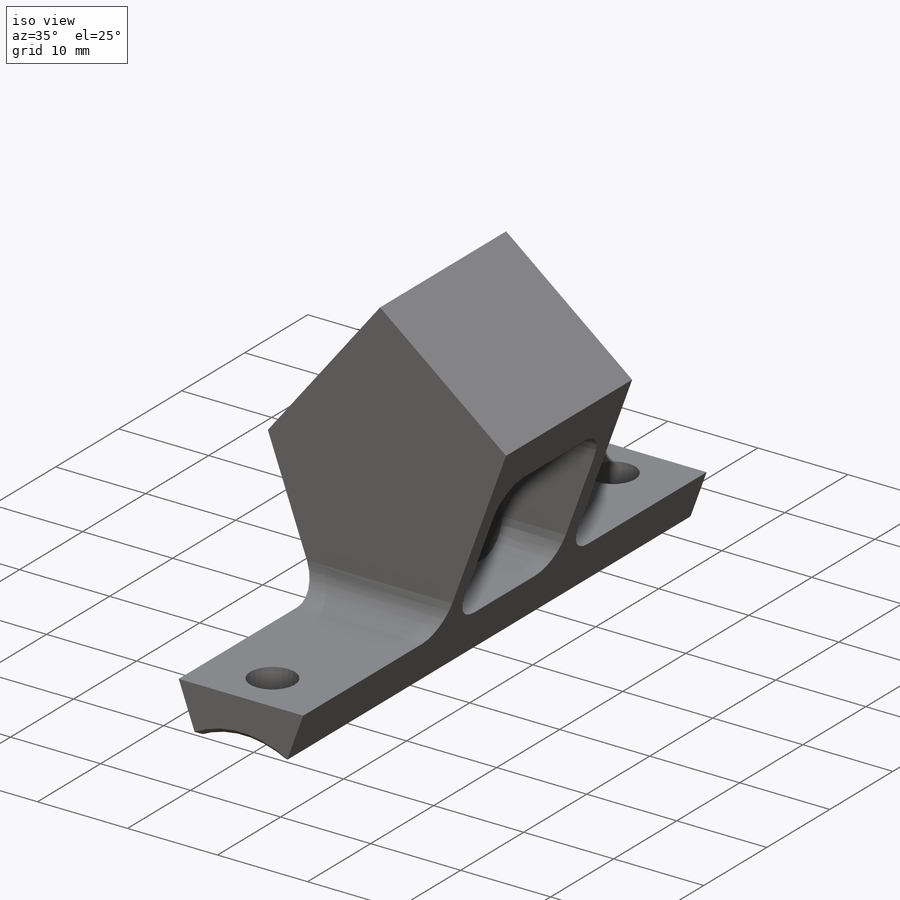
[diagram: iso view]
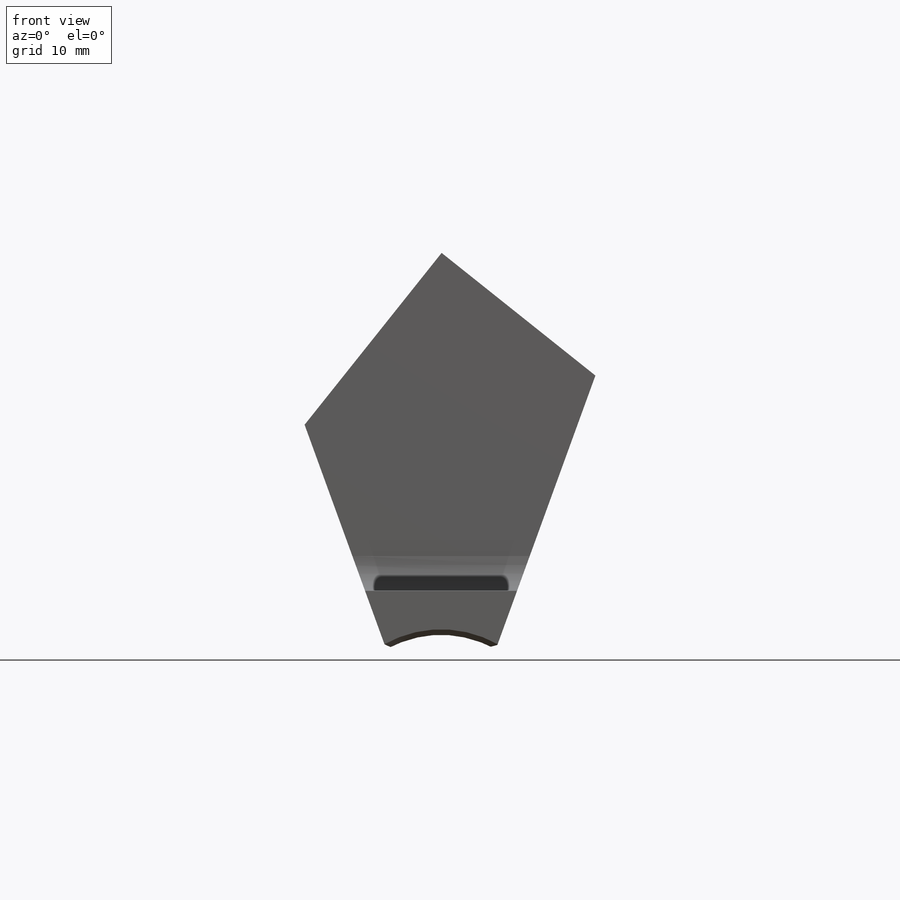
[diagram: front view]
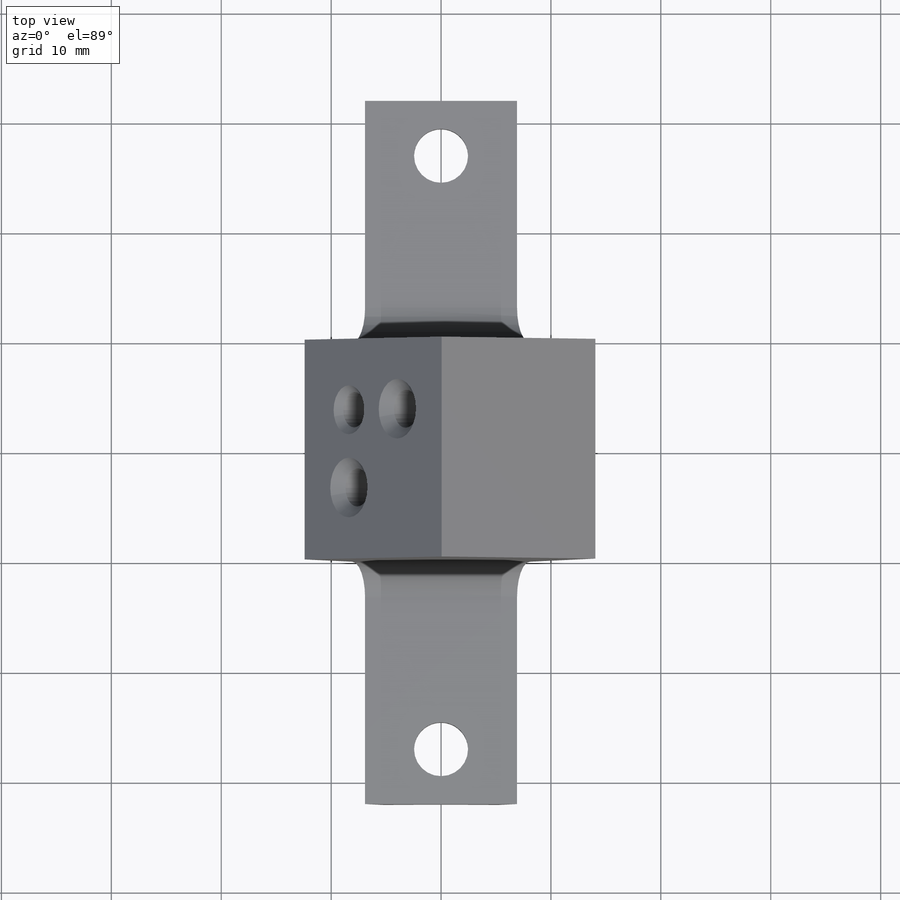
[diagram: top view]
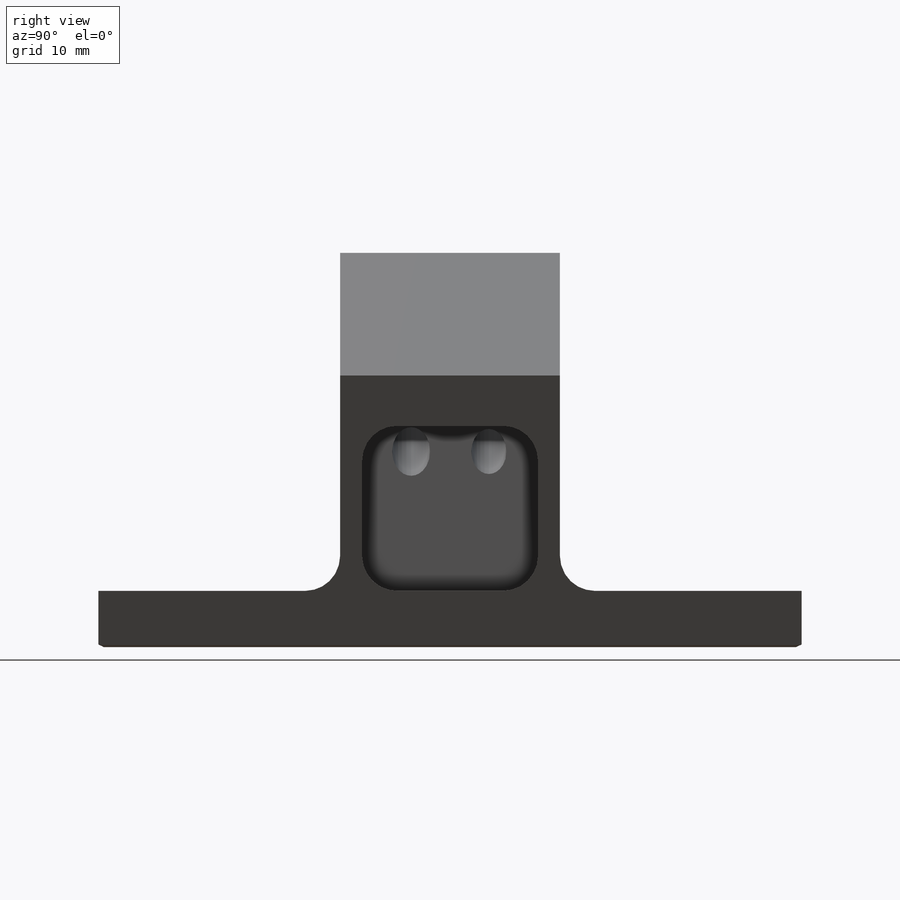
[diagram: right view]
SOLIDWORKS PART (.sldprt)
format: sldprt  version: not decoded by parser v0  size: 1,201,664 bytes
history: native  units: mm
features: sketch x21, hole x5, extrude x4, fillet x4, thread x4, cut_extrude x4, mirror x3, material x1, plane x1, chamfer x1 (+11 scaffold rows collapsed)
feature tree (59):
  scaffold x11  (default folders/planes/origin — collapsed)
  material  "6061 Alloy"
  sketch  "Sketch1"  dims[c1.D1=20.0mm c1.D2=~26.957236mm c2.D2=20.0deg c2.D3=~28.242621mm c3.D2=5.0mm c3.D3=~33.007526mm c4.D3=20.0deg c4.D4=~19.467788mm c5.D4=20.0deg c6.D4=158.0mm c6.D5=94.0mm c6.D6=20.0mm c6.D7=20.0mm c6.D8=18.0mm c6.D9=30.0mm c6.D10=210.0mm c7.D6=20.0mm c7.D8=18.0mm c7.D9=29.0mm c7.D11=7.0mm]
  extrude  "Extrude1"  Depth=20mm
  sketch  "Sketch2"  dims[D1=7.0mm]
  extrude  "Extrude2"  Depth=14mm
  sketch  "Sketch16"  dims[D1=4.0mm D2=2.0mm]
  extrude  "Extrude8"  Depth=22mm
  fillet  "Fillet2"  Radius=3.175mm
  mirror  "Mirror1"
  fillet  "Fillet3"  Radius=3.175mm
  sketch  "Sketch3"  dims[c1.D3=20.0mm c1.D1=~28.284271mm c2.D1=45.0deg c2.D2=10.0mm]
  hole  "#8-32 Tapped Hole2"  [1 undecoded]
  sketch  "3DSketch1"
  thread  "Hole Thread5"  Diameter=4.1656mm  [1 undecoded]
  thread  "Hole Thread6"  Diameter=4.1656mm  [1 undecoded]
  sketch  "Sketch4"  dims[hole-wizard template sketch: 54 standard entries collapsed; hole parameters kept: c17.Thru Tap Drill Dia.=3.4544mm c17.Thru Tap Drill Depth=~36.527749mm c17.Near C'Sink Dia.=5.4356mm c17.D4=~3.666174mm c17.Near C'Sink Angle=90.0deg]
  hole  "1/8 (0.125) Diameter Hole1"  Diameter=3.2004mm Depth=36.527749mm
  sketch  "3DSketch2"
  sketch  "Sketch5"  dims[hole-wizard template sketch: 54 standard entries collapsed; hole parameters kept: c17.Thru Hole Dia.=3.2004mm c17.Thru Hole Depth=~36.527749mm c17.Near C'Sink Dia.=4.4577mm c17.D4=~3.666174mm c17.Near C'Sink Angle=90.0deg]
  plane  "Plane1"  Offset=30mm
  sketch  "Sketch10"  dims[D1=25.0mm D2=15.0mm D3=3.1877mm D4=5.175mm]
  hole  "#8-32 Tapped Hole1"  [1 undecoded]
  sketch  "3DSketch4"
  thread  "Hole Thread3"  Diameter=4.1656mm  [1 undecoded]
  thread  "Hole Thread4"  Diameter=4.1656mm  [1 undecoded]
  sketch  "Sketch11"  dims[hole-wizard template sketch: 54 standard entries collapsed; hole parameters kept: c17.Thru Tap Drill Dia.=3.4544mm c17.Thru Tap Drill Depth=7.001mm c17.Near C'Sink Dia.=4.191mm c17.D4=~3.666174mm c17.Near C'Sink Angle=90.0deg]
  hole  "1/8 (0.125) Diameter Hole2"  Diameter=3.175mm Depth=25.888874mm
  sketch  "3DSketch5"
  sketch  "Sketch12"  dims[hole-wizard template sketch: 47 standard entries collapsed; hole parameters kept: c15.Thru Hole Depth=~25.888874mm c15.Near C'Sink Dia.=4.445mm c15.D4=~3.666174mm c15.Near C'Sink Angle=90.0deg c15.Far C'Sink Dia.=4.445mm c15.D6=~9.919017mm c15.Far C'Sink Angle=90.0deg]
  sketch  "Sketch21"  dims[D1=3.175mm]
  extrude  "Boss-Extrude1"  Depth=3mm
  mirror  "Mirror2"
  sketch  "Sketch15"  dims[D1=7.0mm D2=7.9375mm D3=20.0mm]
  cut_extrude  "Extrude7"  [1 undecoded]
  sketch  "Sketch18"  dims[D1=2.0mm]
  cut_extrude  "Extrude10"  Depth=2mm
  fillet  "Fillet4"  Radius=3.175mm
  sketch  "Sketch19"  dims[D1=5.0mm]
  hole  "#8 Clearance Hole1"  Diameter=4.9149mm Depth=6mm
  sketch  "3DSketch6"
  sketch  "Sketch20"  dims[hole-wizard template sketch: 47 standard entries collapsed; hole parameters kept: c15.Hole Depth=6.0mm c15.D3=~14.816244mm c15.Drill Angle=118.0deg]
  fillet  "Fillet5"  Radius=3.175mm
  sketch  "Sketch23"  dims[D1=50.0mm D2=40.0mm]
  cut_extrude  "Cut-Extrude2"  [1 undecoded]
  sketch  "Sketch24"  dims[D1=25.0mm]
  cut_extrude  "Cut-Extrude3"  [1 undecoded]
  mirror  "Mirror3"
  chamfer  "Chamfer1"  Distance=0.5mm Angle=45deg
decode coverage: 33 of 46 modeling features carry decoded parameters
note: ~ marks probable driven/reference dimensions
note: 9 parameter values undecoded
summary: no parameter record found for 5 features; Diameter pulled from absorbed wizard sketch
note: suppression state not decoded; provenance and decode notes live in map.json
